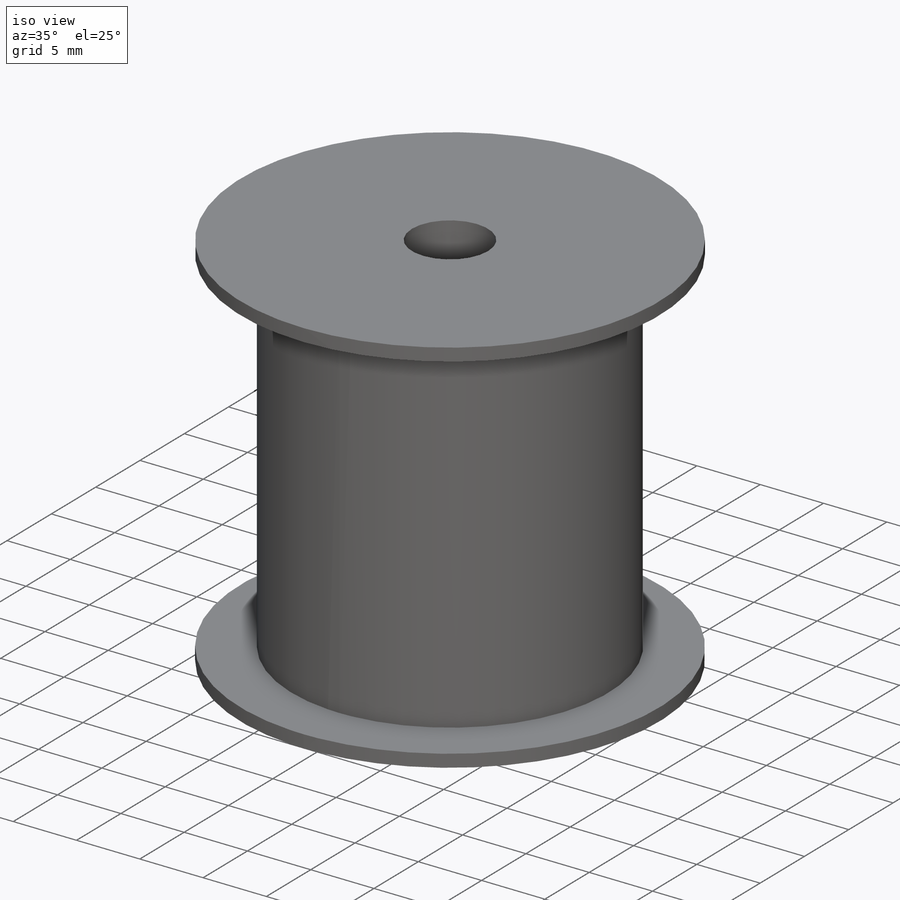
[diagram: iso view]
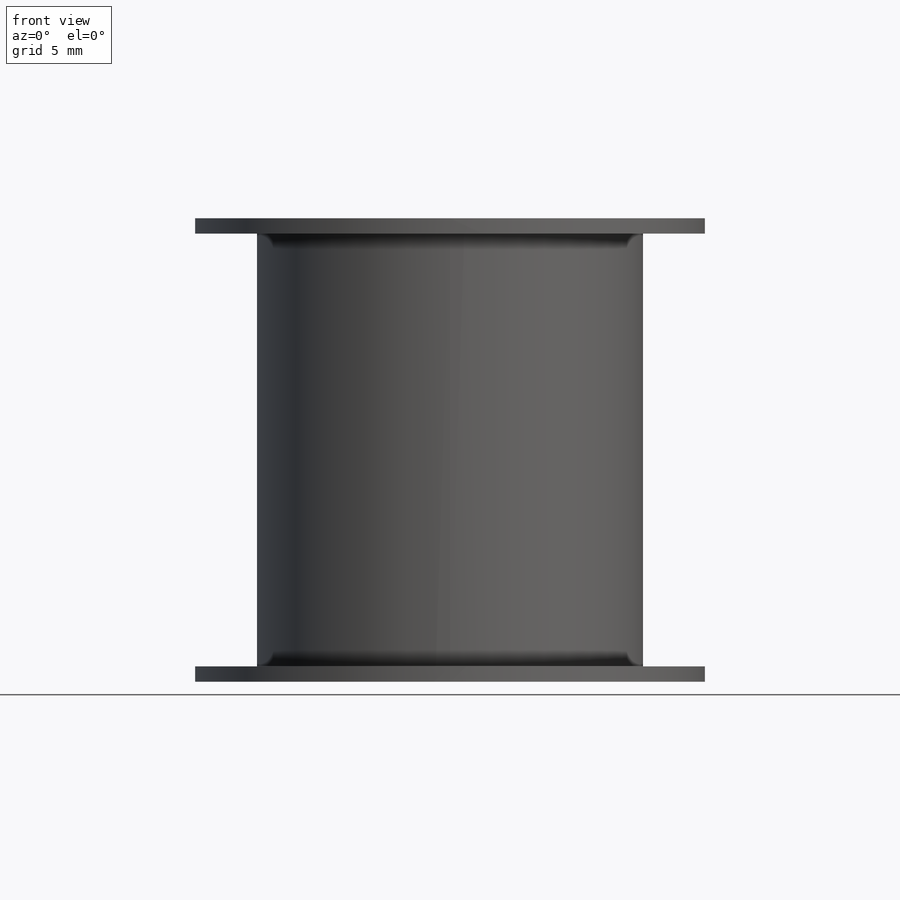
[diagram: front view]
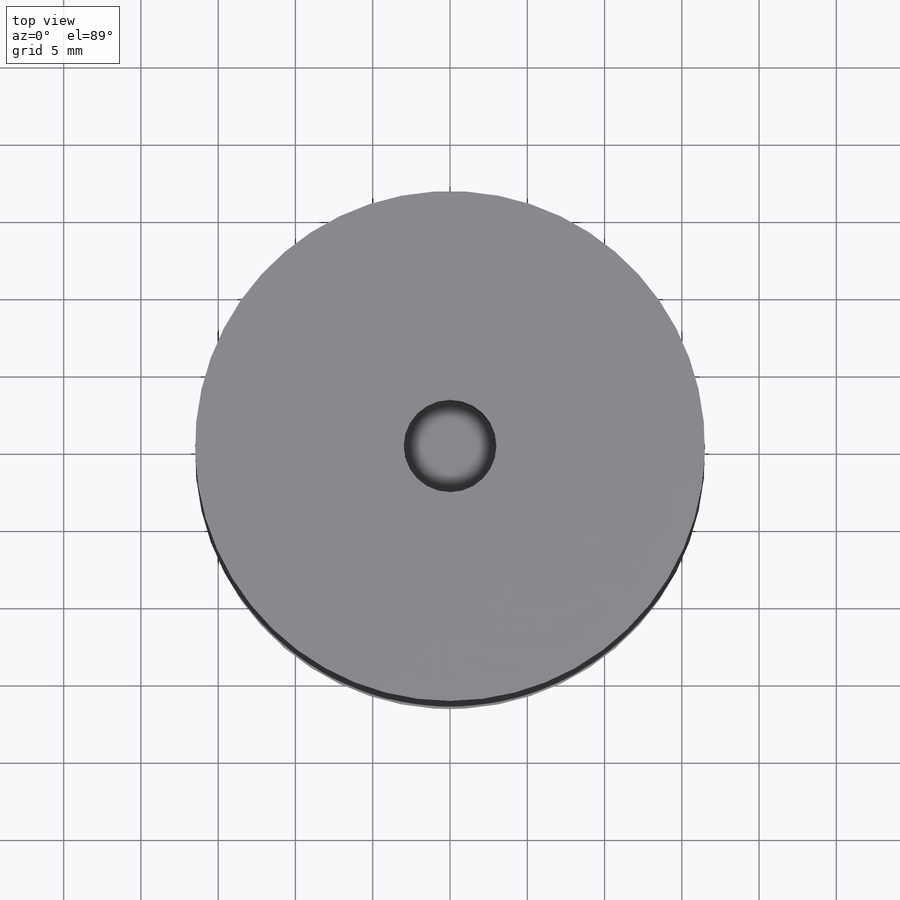
[diagram: top view]
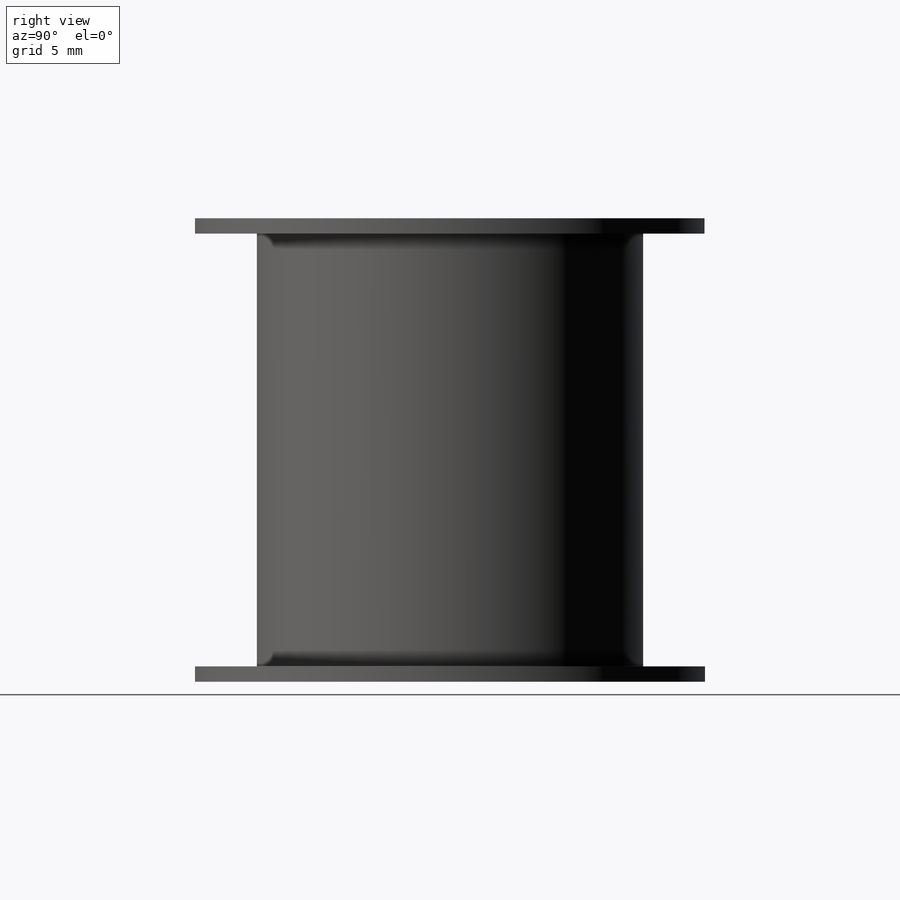
[diagram: right view]
SOLIDWORKS PART (.sldprt)
format: sldprt  version: not decoded by parser v0  size: 155,648 bytes
history: native  units: mm
features: sketch x6, plane x3, extrude x3, cut_extrude x2, material x1 (+9 scaffold rows collapsed)
feature tree (24):
  scaffold x9  (default folders/planes/origin — collapsed)
  material  "Matériau <non spécifié>"
  plane  "Plan de face"
  plane  "Plan de dessus"
  plane  "Plan de droite"
  sketch  "Esquisse1"  dims[c1.D1=~69.522069mm c1.D2=25.0mm c2.D1=4.0mm]
  extrude  "Boss.-Extru.1"  Depth=30mm
  extrude  "Boss.-Extru.2"  [1 undecoded]
  sketch  "Esquisse1<3>"  dims[D1=1.0mm]
  sketch  "Esquisse2"
  extrude  "Boss.-Extru.3"  Depth=1mm
  sketch  "Esquisse3"  dims[D1=2.305mm]
  sketch  "Esquisse4"  dims[D1=6.0mm]
  cut_extrude  "Enlèv. mat.-Extru.1"  Depth=6mm
  cut_extrude  "Enlèv. mat.-Extru.2"  Depth=5mm
  sketch  "Esquisse3D1"
decode coverage: 8 of 11 modeling features carry decoded parameters
note: ~ marks probable driven/reference dimensions
note: 1 parameter value undecoded
note: suppression state not decoded; provenance and decode notes live in map.json
